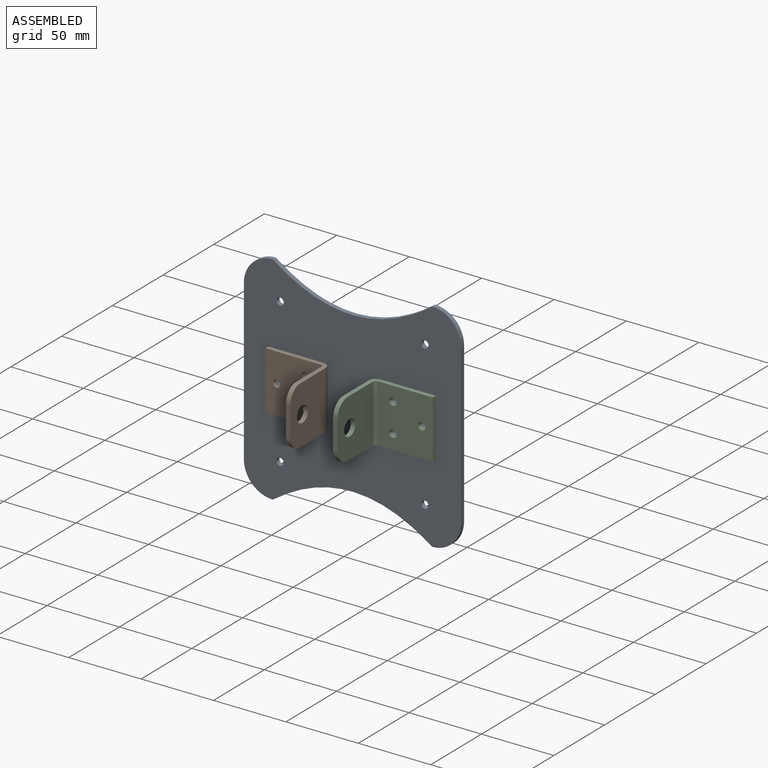
[diagram: assembled view]
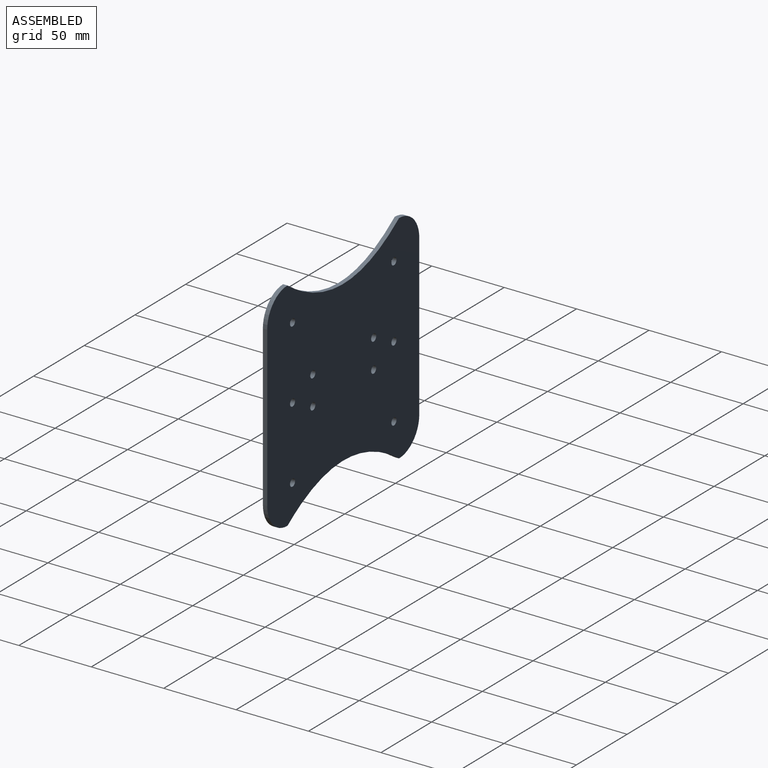
[diagram: assembled view, second angle]
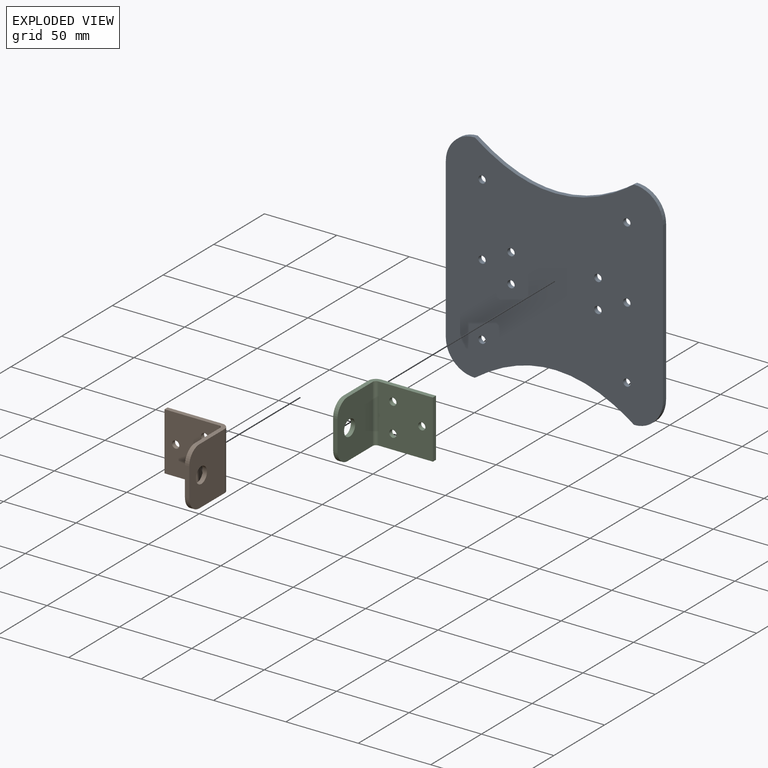
[diagram: exploded view]
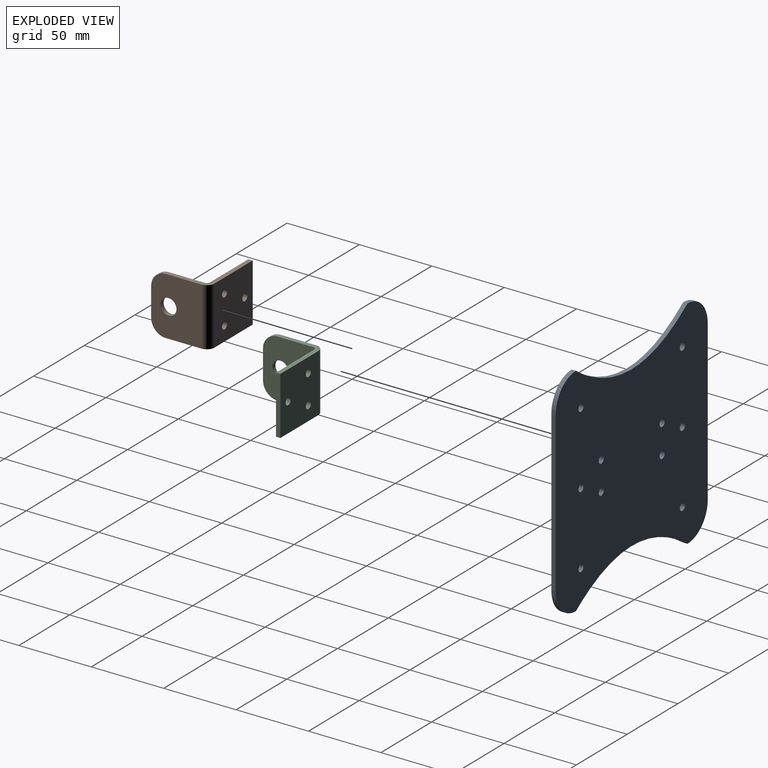
[diagram: exploded view, second angle]
ASSEMBLY  parts=3 mates=2
PART A: 20 faces, bbox 150x3x150 mm
  f0: extruded ~110x20.07mm, area 357.3mm2, adj f1,f10,f12,f13
  f1: cylinder r=20mm len=20mm, axis (0,1,0), area 94.2mm2, adj f0,f2,f12,f13
  f2: plane 110x3mm, normal (-1,0,0), area 330mm2, adj f1,f3,f12,f13
  f3: cylinder r=20mm len=20mm, axis (0,1,0), area 94.2mm2, adj f2,f4,f12,f13
  f4: extruded ~110x19.71mm, area 356.4mm2, adj f3,f5,f12,f13
  f5: cylinder r=20mm len=20mm, axis (0,1,0), area 94.2mm2, adj f4,f6,f12,f13
  f6: plane 110x3mm, normal (1,0,0), area 330mm2, adj f5,f10,f12,f13
  f7: cylinder r=2.5mm len=5mm, axis (0,1,0), area 47.1mm2, adj f12,f13
  f8: cylinder r=2.5mm len=5mm, axis (0,1,0), area 47.1mm2, adj f12,f13
  f9: cylinder r=2.5mm len=5mm, axis (0,1,0), area 47.1mm2, adj f12,f13
  f10: cylinder r=20mm len=20mm, axis (0,1,0), area 94.2mm2, adj f0,f6,f12,f13
  f11: cylinder r=2.5mm len=5mm, axis (0,1,0), area 47.1mm2, adj f12,f13
  f12: plane 150x150mm, normal (0,-1,0), area 19043.3mm2, adj f0,f1,f2,f3,f4,f5,f6,f7
  f13: plane 150x150mm, normal (0,1,0), area 19043.3mm2, adj f0,f1,f2,f3,f4,f5,f6,f7
  f14: cylinder r=2.5mm len=5mm, axis (0,-1,0), area 47.1mm2, adj f12,f13
  f15: cylinder r=2.5mm len=5mm, axis (0,-1,0), area 47.1mm2, adj f12,f13
  f16: cylinder r=2.5mm len=5mm, axis (0,-1,0), area 47.1mm2, adj f12,f13
  f17: cylinder r=2.5mm len=5mm, axis (0,-1,0), area 47.1mm2, adj f12,f13
  f18: cylinder r=2.5mm len=5mm, axis (0,-1,0), area 47.1mm2, adj f12,f13
  f19: cylinder r=2.5mm len=5mm, axis (0,-1,0), area 47.1mm2, adj f12,f13
PART B: 20 faces, bbox 43x40x40 mm
  f0: plane 37.7x3mm, normal (0,0,1), area 113.1mm2, adj f1,f6,f7,f16
  f1: plane 40x3mm, normal (1,0,0), area 120mm2, adj f0,f2,f6,f7
  f2: plane 37.7x3mm, normal (0,0,-1), area 113.1mm2, adj f1,f6,f7,f17
  f3: cylinder r=2.5mm len=5mm, axis (0,-1,0), area 47.1mm2, adj f6,f7
  f4: cylinder r=2.5mm len=5mm, axis (0,-1,0), area 47.1mm2, adj f6,f7
  f5: cylinder r=2.5mm len=5mm, axis (0,-1,0), area 47.1mm2, adj f6,f7
  f6: plane 40x37.7mm, normal (0,1,0), area 1449.1mm2, adj f0,f1,f2,f3,f4,f5,f18
  f7: plane 40x37.7mm, normal (0,-1,0), area 1449.1mm2, adj f0,f1,f2,f3,f4,f5,f19
  f8: plane 20x3mm, normal (0,-1,0), area 60mm2, adj f12,f13,f14,f15
  f9: plane 24.7x3mm, normal (0,0,1), area 74.1mm2, adj f12,f13,f14,f16
  f10: cylinder r=5.5mm len=11mm, axis (-1,0,0), area 103.7mm2, adj f12,f13
  f11: plane 24.7x3mm, normal (0,0,-1), area 74.1mm2, adj f12,f13,f15,f17
  f12: plane 40x34.7mm, normal (-1,0,0), area 1250mm2, adj f8,f9,f10,f11,f14,f15,f18
  f13: plane 40x34.7mm, normal (1,0,0), area 1250mm2, adj f8,f9,f10,f11,f14,f15,f19
  f14: cylinder r=10mm len=10mm, axis (-1,0,0), area 47.1mm2, adj f8,f9,f12,f13
  f15: cylinder r=10mm len=10mm, axis (-1,0,0), area 47.1mm2, adj f8,f11,f12,f13
  f16: plane 5.3x5.3mm, normal (0,0,1), area 17.9mm2, adj f0,f9,f18,f19
  f17: plane 5.3x5.3mm, normal (0,0,-1), area 17.9mm2, adj f2,f11,f18,f19
  f18: cylinder r=5.3mm len=40mm, axis (0,0,1), area 333mm2, adj f6,f12,f16,f17
  f19: cylinder r=2.3mm len=40mm, axis (0,0,1), area 144.5mm2, adj f7,f13,f16,f17
PART C: same geometry as B
PLACE A t=(-17.64,-63.39,16.08)mm
PLACE B rot(axis=(0,1,0),180deg) t=(-55.34,-66.72,16.08)mm
PLACE C t=(20.06,-66.41,16.08)mm
MATE slider A.f15 <-> C.f4  axis (0,-1,0) through (32.36,-66.39,16.08)mm
MATE slider B.f4 <-> A.f19  axis (0,-1,0) through (-67.64,-69.72,16.08)mm
